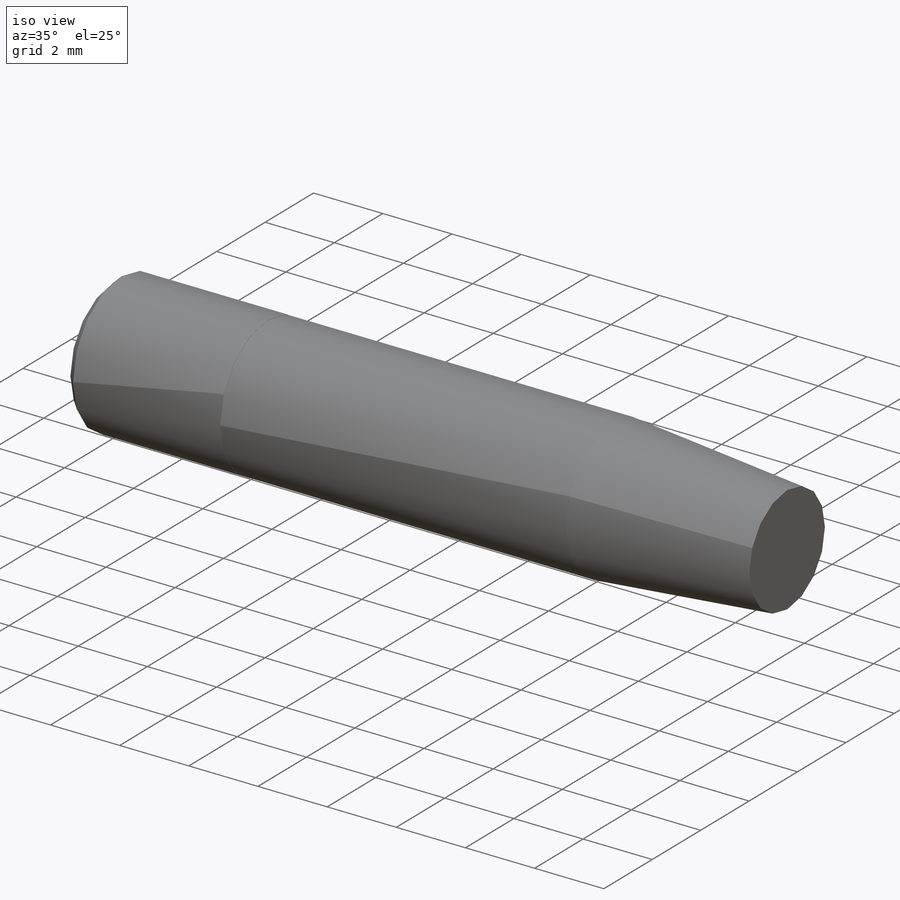
[diagram: iso view]
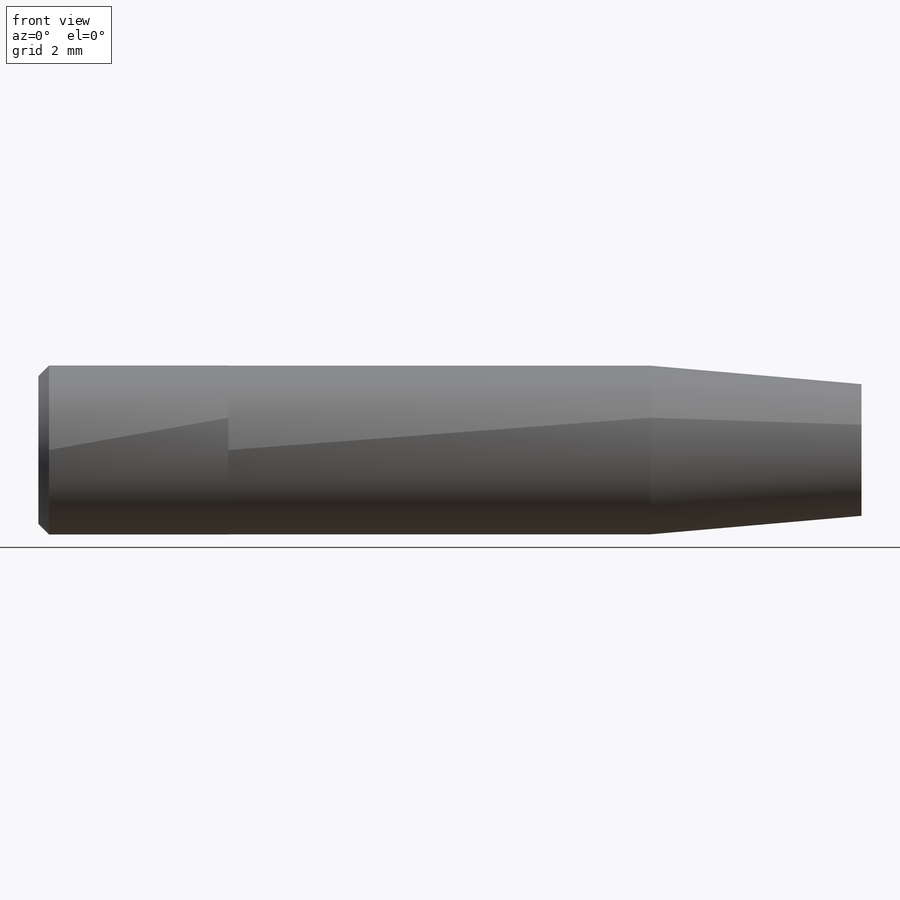
[diagram: front view]
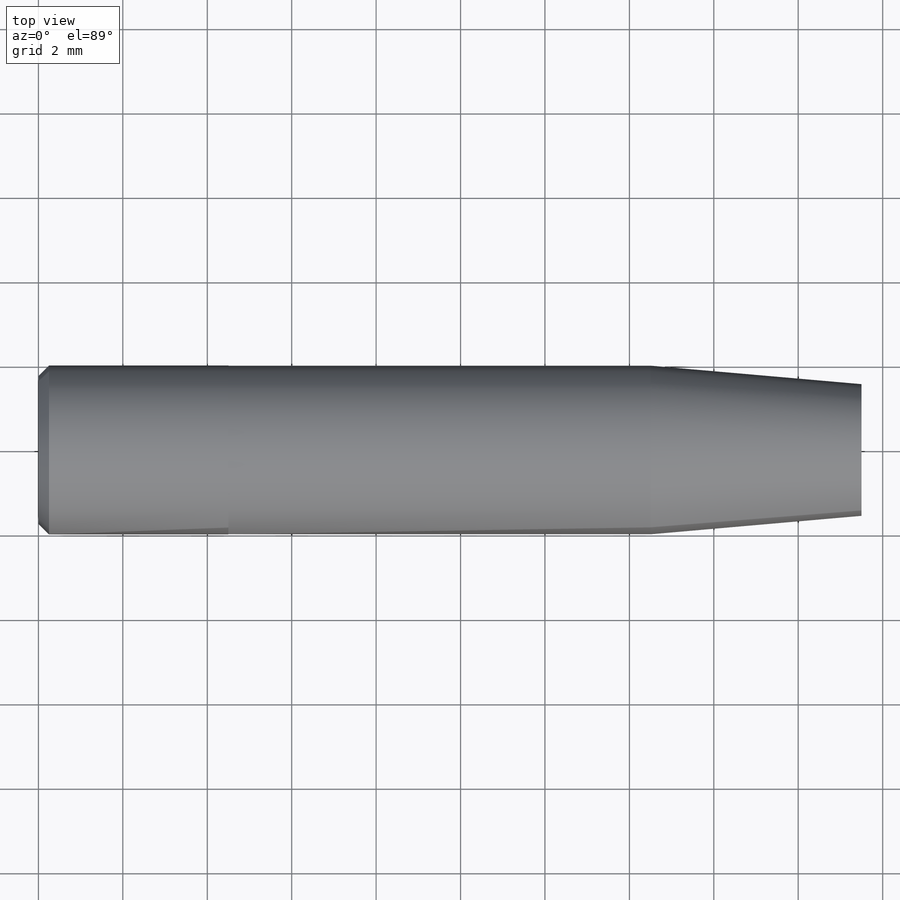
[diagram: top view]
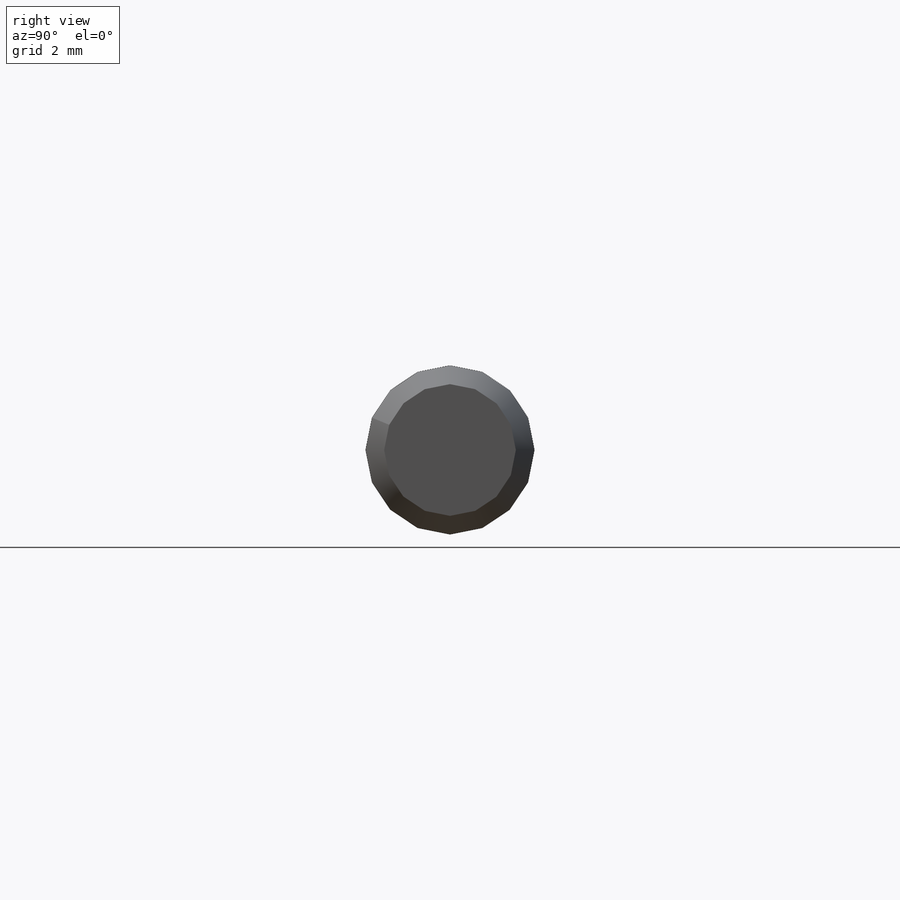
[diagram: right view]
SOLIDWORKS PART (.sldprt)
format: sldprt  version: not decoded by parser v0  size: 893,952 bytes
history: native  units: mm
features: sketch x2, material x1, revolve x1, fillet x1, cut_revolve x1 (+11 scaffold rows collapsed)
feature tree (17):
  scaffold x11  (default folders/planes/origin — collapsed)
  material  "Brass"
  sketch  "Sketch1"  dims[c1.D1=5.0mm c1.D2=21.2mm c1.D3=10.0mm c1.D4=~7.643196mm c2.D4=5.0deg c2.D5=4.995mm c2.D6=5.005mm c2.D7=1.0mm c2.D8=9.0mm c2.D1=4.5mm c2.D9=1.0mm c2.D10=~0.43212mm]
  revolve  "Revolve1"  Angle=360deg
  fillet  "Fillet1"  Radius=0.25mm
  sketch  "Sketch2"  dims[c1.D1=0.25mm c2.D1=45.0deg]
  cut_revolve  "Cut-Revolve1"  Angle=360deg
decode coverage: 5 of 5 modeling features carry decoded parameters
note: ~ marks probable driven/reference dimensions
note: suppression state not decoded; provenance and decode notes live in map.json
